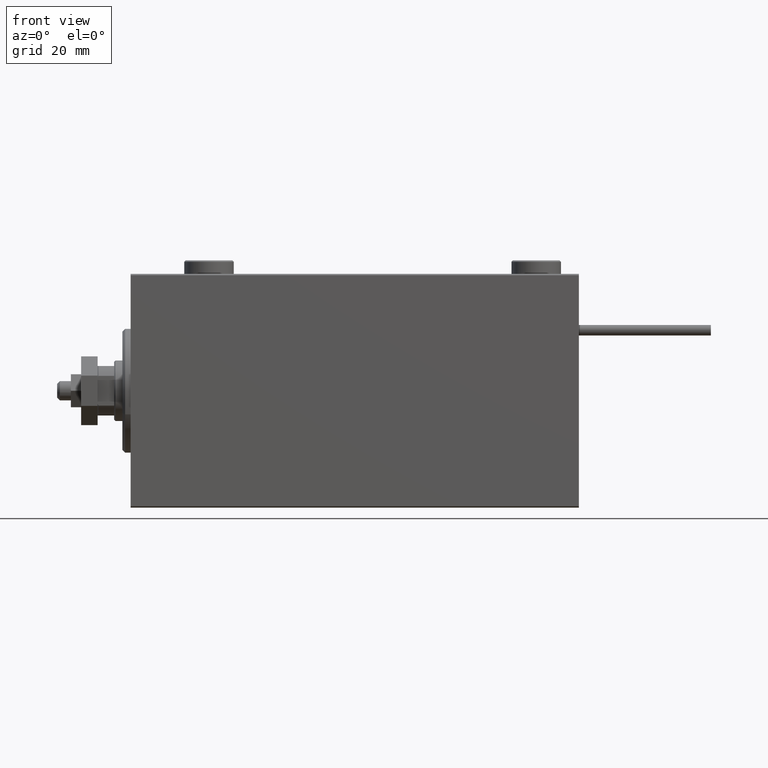
[diagram: clean part render]
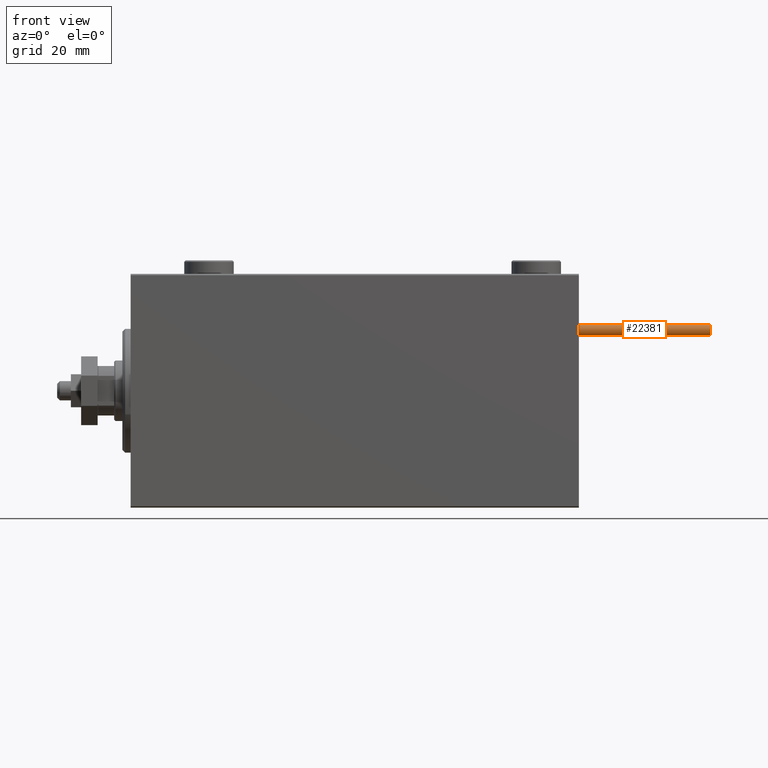
[diagram: same view with one face highlighted and labeled with its STEP entity id]
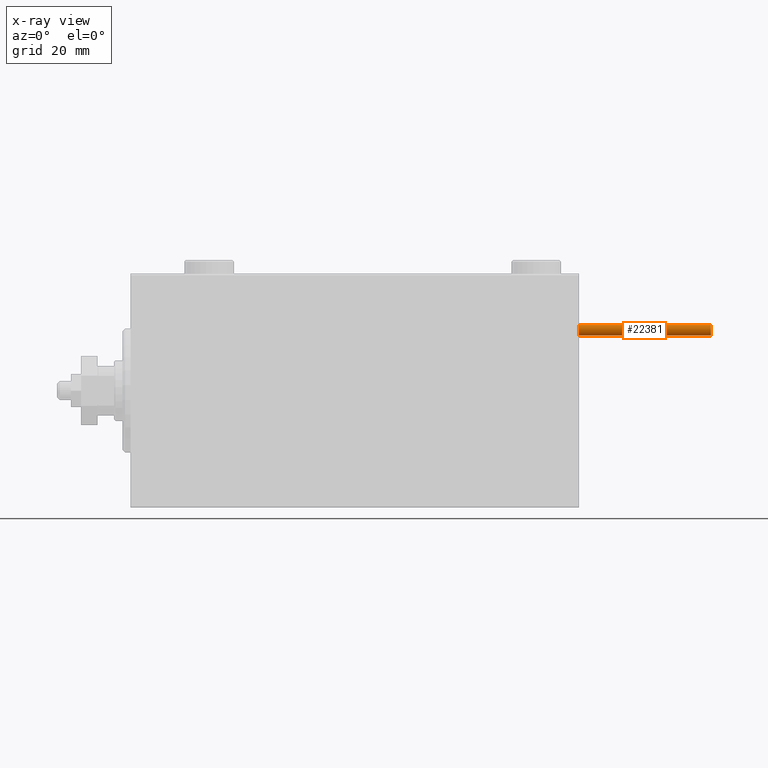
[diagram: x-ray of the same camera — body ghosted, the highlighted face saturated]
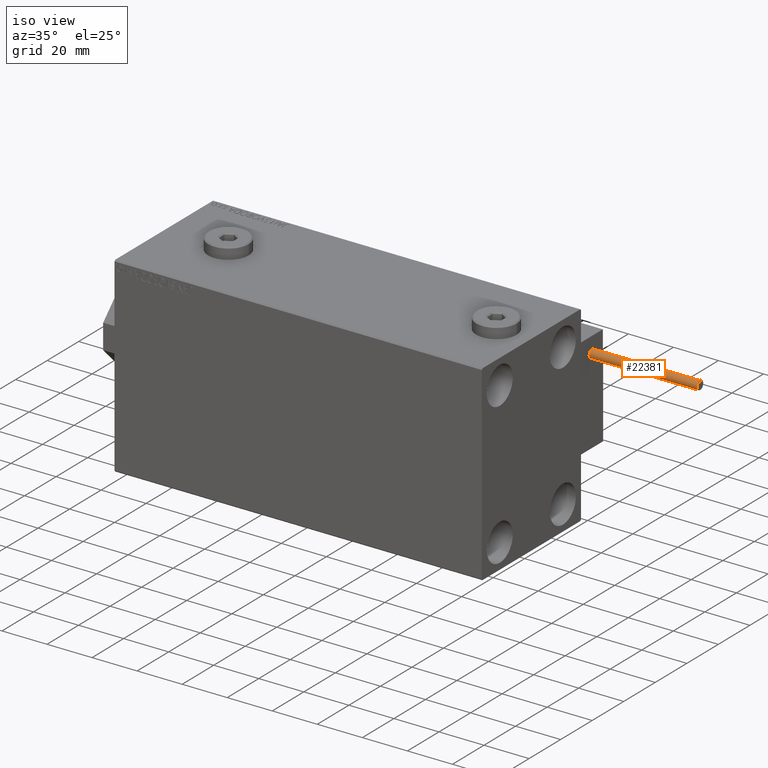
[diagram: same view with one face highlighted and labeled with its STEP entity id]
A machine part, front view. The second image highlights one B-rep face of the part: STEP entity #22381.
The next image is the same camera in x-ray: the body ghosted, the highlighted face saturated — about 0% of this face is hidden behind the body in this view.
A second angle (iso view) of the same face is appended — the face is thin or edge-on in the first view.
In plain terms, the highlighted cylindrical surface (edge-blend (fillet) strip) has radius 1.9 mm, axis along (-1, -0, 0).
Its self-contained STEP definition (entity closure, byte-faithful):
#931 = DIRECTION ( 'NONE',  ( 1.000000000000000000, 0.000000000000000000, 0.000000000000000000 ) ) ;
#4289 = CARTESIAN_POINT ( 'NONE',  ( 1.899999999999999467, 2.326828918379970872E-16, 48.00000000000000000 ) ) ;
#4461 = ORIENTED_EDGE ( 'NONE', *, *, #23481, .T. ) ;
#4770 = AXIS2_PLACEMENT_3D ( 'NONE', #43928, #8185, #36092 ) ;
#5843 = DIRECTION ( 'NONE',  ( 0.000000000000000000, 0.000000000000000000, 1.000000000000000000 ) ) ;
#6481 = VECTOR ( 'NONE', #44151, 1000.000000000000000 ) ;
#6608 = CARTESIAN_POINT ( 'NONE',  ( -1.899999999999999467, 0.000000000000000000, 0.000000000000000000 ) ) ;
#8185 = DIRECTION ( 'NONE',  ( -0.000000000000000000, -0.000000000000000000, -1.000000000000000000 ) ) ;
#8646 = EDGE_CURVE ( 'NONE', #49962, #13291, #41039, .T. ) ;
#9429 = AXIS2_PLACEMENT_3D ( 'NONE', #24855, #17282, #45703 ) ;
#9876 = EDGE_CURVE ( 'NONE', #47040, #17255, #43576, .T. ) ;
#13291 = VERTEX_POINT ( 'NONE', #4289 ) ;
#15719 = CARTESIAN_POINT ( 'NONE',  ( 1.899999999999999467, 2.326828918379970872E-16, 48.00000000000000000 ) ) ;
#17255 = VERTEX_POINT ( 'NONE', #21005 ) ;
#17282 = DIRECTION ( 'NONE',  ( 0.000000000000000000, 0.000000000000000000, 1.000000000000000000 ) ) ;
#18370 = CARTESIAN_POINT ( 'NONE',  ( -1.899999999999999467, 0.000000000000000000, 48.00000000000000000 ) ) ;
#21005 = CARTESIAN_POINT ( 'NONE',  ( 1.899999999999999467, 2.326828918379970872E-16, 0.000000000000000000 ) ) ;
#22381 = ADVANCED_FACE ( 'NONE', ( #32959 ), #48868, .T. ) ;
#23481 = EDGE_CURVE ( 'NONE', #49962, #47040, #25975, .T. ) ;
#24855 = CARTESIAN_POINT ( 'NONE',  ( 0.000000000000000000, 0.000000000000000000, 0.000000000000000000 ) ) ;
#25745 = EDGE_CURVE ( 'NONE', #13291, #17255, #27452, .T. ) ;
#25975 = LINE ( 'NONE', #50217, #50563 ) ;
#26232 = DIRECTION ( 'NONE',  ( -0.000000000000000000, -0.000000000000000000, -1.000000000000000000 ) ) ;
#27452 = LINE ( 'NONE', #15719, #6481 ) ;
#31873 = AXIS2_PLACEMENT_3D ( 'NONE', #44731, #5843, #931 ) ;
#32959 = FACE_OUTER_BOUND ( 'NONE', #33855, .T. ) ;
#33855 = EDGE_LOOP ( 'NONE', ( #41890, #39551, #4461, #40593 ) ) ;
#36092 = DIRECTION ( 'NONE',  ( -1.000000000000000000, 0.000000000000000000, 0.000000000000000000 ) ) ;
#39551 = ORIENTED_EDGE ( 'NONE', *, *, #8646, .F. ) ;
#40593 = ORIENTED_EDGE ( 'NONE', *, *, #9876, .T. ) ;
#41039 = CIRCLE ( 'NONE', #31873, 1.899999999999999467 ) ;
#41890 = ORIENTED_EDGE ( 'NONE', *, *, #25745, .F. ) ;
#43576 = CIRCLE ( 'NONE', #9429, 1.899999999999999467 ) ;
#43928 = CARTESIAN_POINT ( 'NONE',  ( 0.000000000000000000, 0.000000000000000000, 48.00000000000000000 ) ) ;
#44151 = DIRECTION ( 'NONE',  ( -0.000000000000000000, -0.000000000000000000, -1.000000000000000000 ) ) ;
#44731 = CARTESIAN_POINT ( 'NONE',  ( 0.000000000000000000, 0.000000000000000000, 48.00000000000000000 ) ) ;
#45703 = DIRECTION ( 'NONE',  ( 1.000000000000000000, 0.000000000000000000, 0.000000000000000000 ) ) ;
#47040 = VERTEX_POINT ( 'NONE', #6608 ) ;
#48868 = CYLINDRICAL_SURFACE ( 'NONE', #4770, 1.899999999999999467 ) ;
#49962 = VERTEX_POINT ( 'NONE', #18370 ) ;
#50217 = CARTESIAN_POINT ( 'NONE',  ( -1.899999999999999467, 0.000000000000000000, 48.00000000000000000 ) ) ;
#50563 = VECTOR ( 'NONE', #26232, 1000.000000000000000 ) ;